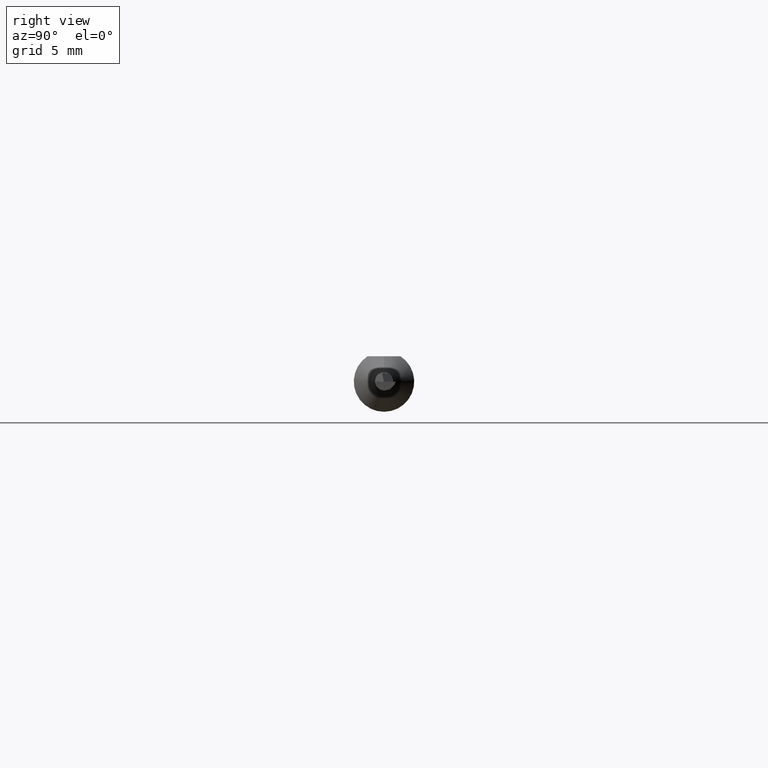
[diagram: clean part render]
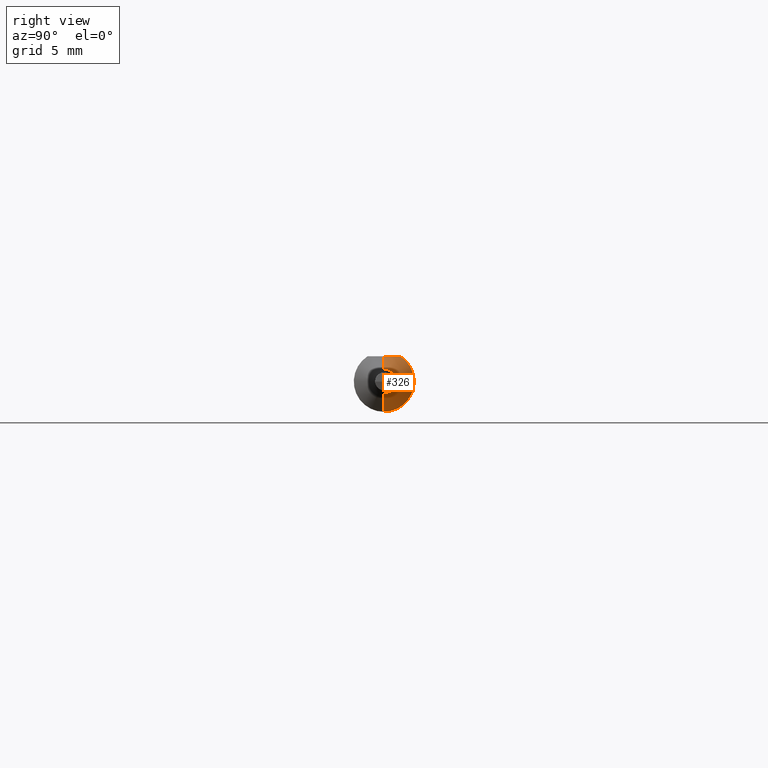
[diagram: same view with one face highlighted and labeled with its STEP entity id]
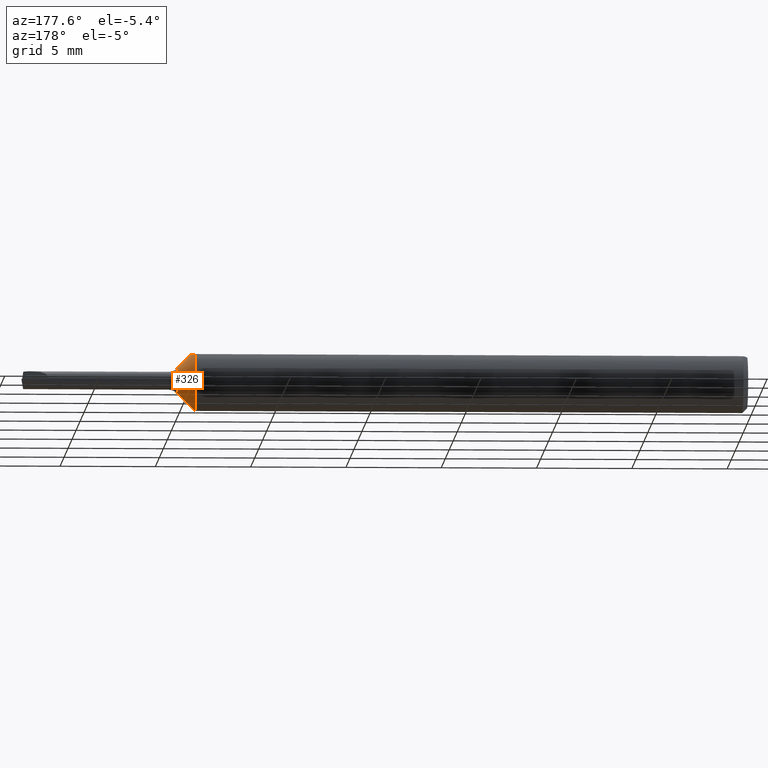
[diagram: same view with one face highlighted and labeled with its STEP entity id]
A machine part, right view. The second image highlights one B-rep face of the part: STEP entity #326.
A second angle (auxiliary view) of the same face is appended — the face is thin or edge-on in the first view.
In plain terms, the highlighted conical surface has half-angle 45 deg.
Its self-contained STEP definition (entity closure, byte-faithful):
#15 = EDGE_CURVE ( 'NONE', #426, #384, #514, .T. ) ;
#38 = CARTESIAN_POINT ( 'NONE',  ( 1.177677669529663573, 3.162323435702260084E-18, -0.02582233047033637152 ) ) ;
#55 = EDGE_CURVE ( 'NONE', #426, #522, #345, .T. ) ;
#59 = AXIS2_PLACEMENT_3D ( 'NONE', #350, #106, #154 ) ;
#73 = LINE ( 'NONE', #123, #437 ) ;
#86 = DIRECTION ( 'NONE',  ( -0.7071067811865457964, 0.000000000000000000, 0.7071067811865492381 ) ) ;
#106 = DIRECTION ( 'NONE',  ( -1.000000000000000000, -0.000000000000000000, -0.000000000000000000 ) ) ;
#108 = EDGE_CURVE ( 'NONE', #508, #414, #450, .T. ) ;
#123 = CARTESIAN_POINT ( 'NONE',  ( 1.177677669529663573, 3.162323435702260854E-18, -0.02582233047033637499 ) ) ;
#129 = CARTESIAN_POINT ( 'NONE',  ( 1.177677669529663573, 0.000000000000000000, 0.02582233047033637499 ) ) ;
#134 = AXIS2_PLACEMENT_3D ( 'NONE', #453, #226, #614 ) ;
#137 = CARTESIAN_POINT ( 'NONE',  ( 1.151150000000000340, 0.005920815533600999603, 0.05235000000000002152 ) ) ;
#141 = ORIENTED_EDGE ( 'NONE', *, *, #15, .T. ) ;
#154 = DIRECTION ( 'NONE',  ( 0.000000000000000000, 0.000000000000000000, 1.000000000000000000 ) ) ;
#185 = CARTESIAN_POINT ( 'NONE',  ( 1.141150000000000109, 0.03386738844375220686, 0.05235000000000000070 ) ) ;
#192 = CARTESIAN_POINT ( 'NONE',  ( 1.146488788636946587, 0.02320328458619741463, 0.05235000000000002152 ) ) ;
#226 = DIRECTION ( 'NONE',  ( -1.000000000000000000, -0.000000000000000000, -0.000000000000000000 ) ) ;
#236 = ORIENTED_EDGE ( 'NONE', *, *, #55, .F. ) ;
#239 = ORIENTED_EDGE ( 'NONE', *, *, #319, .T. ) ;
#278 = CARTESIAN_POINT ( 'NONE',  ( 1.143992034642578703, 0.02863519109676610983, 0.05235000000000002152 ) ) ;
#284 = CARTESIAN_POINT ( 'NONE',  ( 1.141150000000000109, 0.03386738844375220686, 0.05235000000000000070 ) ) ;
#303 = DIRECTION ( 'NONE',  ( -1.000000000000000000, -0.000000000000000000, -0.000000000000000000 ) ) ;
#315 = FACE_OUTER_BOUND ( 'NONE', #409, .T. ) ;
#319 = EDGE_CURVE ( 'NONE', #414, #522, #73, .T. ) ;
#326 = ADVANCED_FACE ( 'NONE', ( #315 ), #577, .T. ) ;
#345 = CIRCLE ( 'NONE', #571, 0.06235000000000000264 ) ;
#350 = CARTESIAN_POINT ( 'NONE',  ( 1.177677669529663573, 0.000000000000000000, 0.000000000000000000 ) ) ;
#352 = DIRECTION ( 'NONE',  ( -0.7071067811865457964, 8.659560562354953812E-17, -0.7071067811865492381 ) ) ;
#382 = CARTESIAN_POINT ( 'NONE',  ( 1.150078615661969117, 0.01191463382135334557, 0.05235000000000001458 ) ) ;
#384 = VERTEX_POINT ( 'NONE', #535 ) ;
#394 = DIRECTION ( 'NONE',  ( 0.000000000000000000, 0.000000000000000000, 1.000000000000000000 ) ) ;
#409 = EDGE_LOOP ( 'NONE', ( #615, #239, #236, #141, #610 ) ) ;
#414 = VERTEX_POINT ( 'NONE', #38 ) ;
#426 = VERTEX_POINT ( 'NONE', #185 ) ;
#429 = EDGE_CURVE ( 'NONE', #508, #384, #626, .T. ) ;
#437 = VECTOR ( 'NONE', #352, 39.37007874015748143 ) ;
#450 = CIRCLE ( 'NONE', #59, 0.02582233047033637499 ) ;
#453 = CARTESIAN_POINT ( 'NONE',  ( 1.177677669529663573, 0.000000000000000000, 0.000000000000000000 ) ) ;
#508 = VERTEX_POINT ( 'NONE', #533 ) ;
#514 = B_SPLINE_CURVE_WITH_KNOTS ( 'NONE', 3,
 ( #284, #278, #192, #382, #137, #586 ),
 .UNSPECIFIED., .F., .F.,
 ( 4, 2, 4 ),
 ( 0.002018861167849336693, 0.002467762199066116102, 0.002916663230282895512 ),
 .UNSPECIFIED. ) ;
#522 = VERTEX_POINT ( 'NONE', #594 ) ;
#533 = CARTESIAN_POINT ( 'NONE',  ( 1.177677669529663573, 0.000000000000000000, 0.02582233047033637152 ) ) ;
#535 = CARTESIAN_POINT ( 'NONE',  ( 1.151150000000000118, -1.477724062875314838E-21, 0.05235000000000001458 ) ) ;
#555 = CARTESIAN_POINT ( 'NONE',  ( 1.141150000000000109, 0.000000000000000000, 0.000000000000000000 ) ) ;
#571 = AXIS2_PLACEMENT_3D ( 'NONE', #555, #303, #394 ) ;
#577 = CONICAL_SURFACE ( 'NONE', #134, 0.02582233047033637499, 0.7853981633974507215 ) ;
#586 = CARTESIAN_POINT ( 'NONE',  ( 1.151150000000000118, -1.477724062875314838E-21, 0.05235000000000001458 ) ) ;
#594 = CARTESIAN_POINT ( 'NONE',  ( 1.141150000000000109, 7.635672792683746671E-18, -0.06235000000000000264 ) ) ;
#603 = VECTOR ( 'NONE', #86, 39.37007874015748143 ) ;
#610 = ORIENTED_EDGE ( 'NONE', *, *, #429, .F. ) ;
#614 = DIRECTION ( 'NONE',  ( 0.000000000000000000, 0.000000000000000000, 1.000000000000000000 ) ) ;
#615 = ORIENTED_EDGE ( 'NONE', *, *, #108, .T. ) ;
#626 = LINE ( 'NONE', #129, #603 ) ;